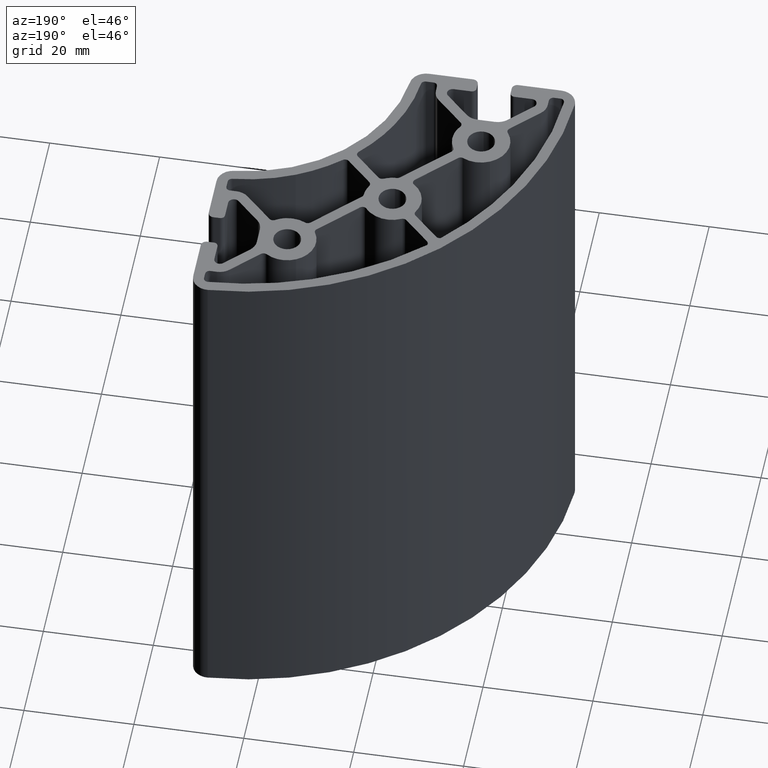
[diagram: clean part render]
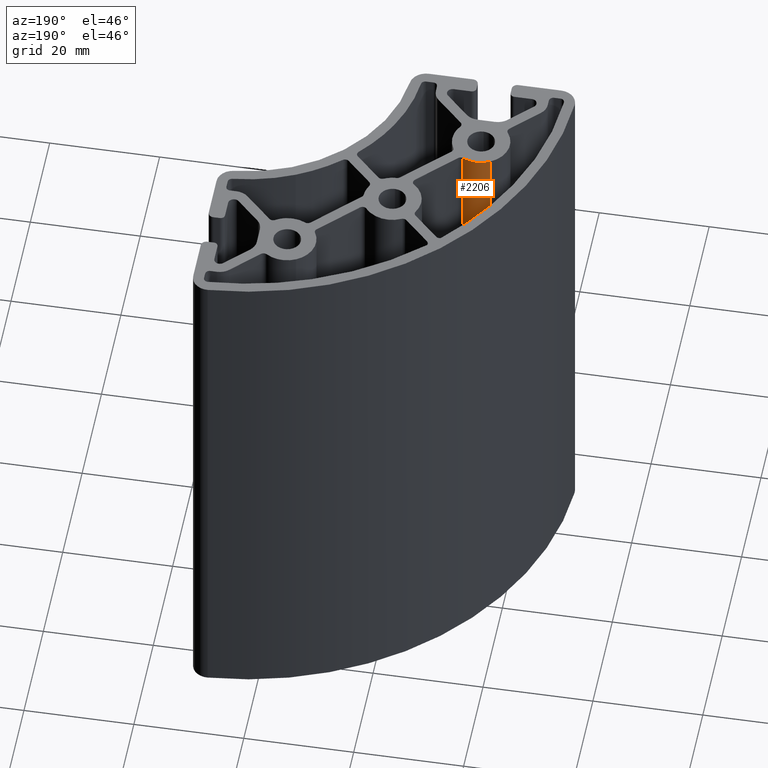
[diagram: same view with one face highlighted and labeled with its STEP entity id]
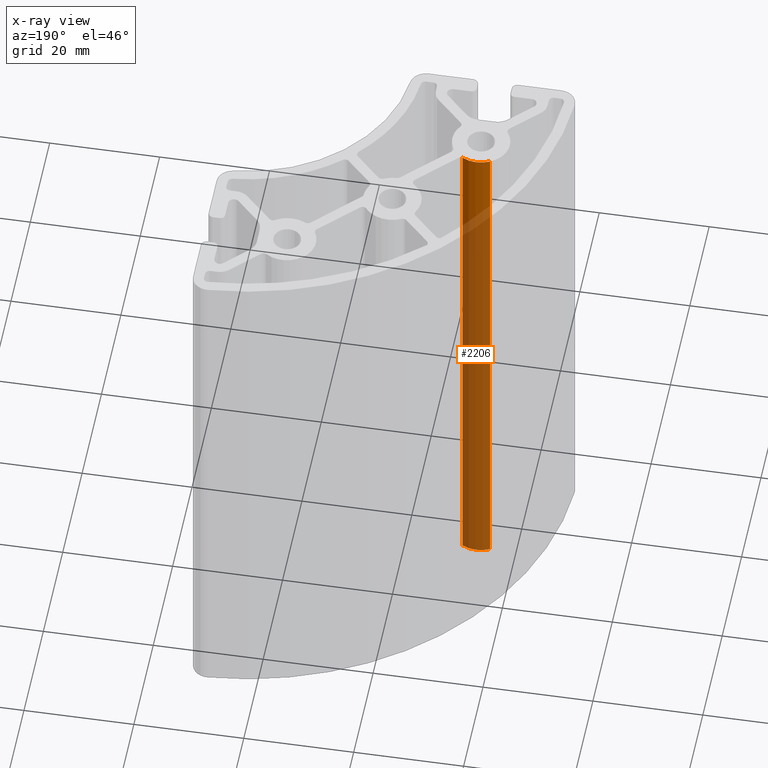
[diagram: x-ray of the same camera — body ghosted, the highlighted face saturated]
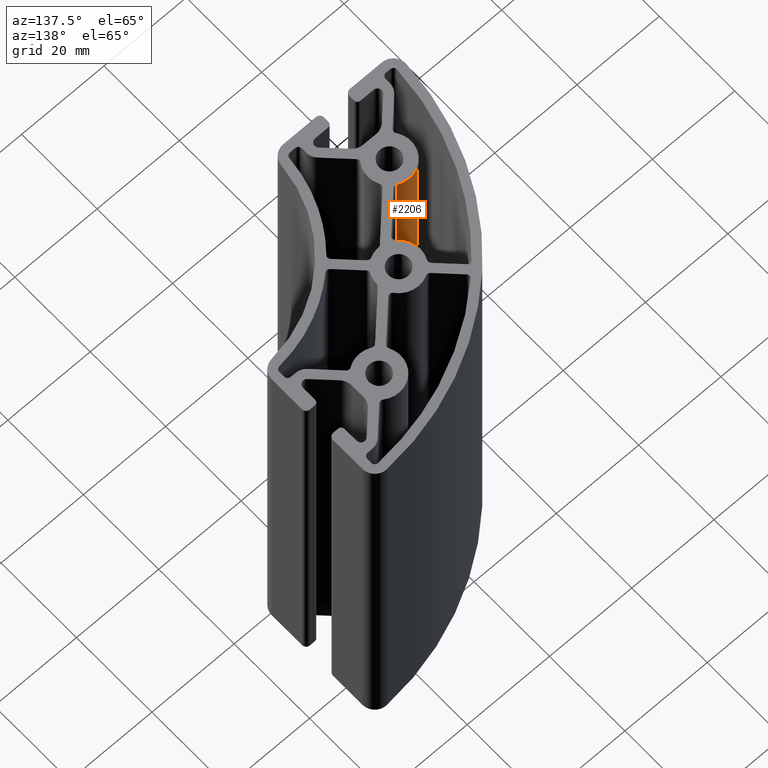
[diagram: same view with one face highlighted and labeled with its STEP entity id]
A machine part, auxiliary view. The second image highlights one B-rep face of the part: STEP entity #2206.
The next image is the same camera in x-ray: the body ghosted, the highlighted face saturated — about 86% of this face is hidden behind the body in this view.
A second angle (auxiliary view) of the same face is appended — the face is thin or edge-on in the first view.
In plain terms, the highlighted cylindrical surface (edge-blend (fillet) strip) has radius 5.2501 mm, axis along (0, 0, 1).
Its self-contained STEP definition (entity closure, byte-faithful):
#34=CIRCLE('',#2329,5.25005250348357);
#35=CIRCLE('',#2330,5.25005250348357);
#189=CYLINDRICAL_SURFACE('',#2328,5.25005250348357);
#268=FACE_OUTER_BOUND('',#386,.T.);
#386=EDGE_LOOP('',(#1482,#1483,#1484,#1485));
#523=LINE('',#3351,#712);
#524=LINE('',#3357,#713);
#712=VECTOR('',#2610,100.);
#713=VECTOR('',#2617,100.);
#901=VERTEX_POINT('',#3348);
#902=VERTEX_POINT('',#3350);
#903=VERTEX_POINT('',#3354);
#904=VERTEX_POINT('',#3356);
#1134=EDGE_CURVE('',#901,#902,#523,.T.);
#1136=EDGE_CURVE('',#903,#901,#34,.T.);
#1137=EDGE_CURVE('',#903,#904,#524,.T.);
#1138=EDGE_CURVE('',#902,#904,#35,.T.);
#1482=ORIENTED_EDGE('',*,*,#1136,.F.);
#1483=ORIENTED_EDGE('',*,*,#1137,.T.);
#1484=ORIENTED_EDGE('',*,*,#1138,.F.);
#1485=ORIENTED_EDGE('',*,*,#1134,.F.);
#2206=ADVANCED_FACE('',(#268),#189,.T.);
#2328=AXIS2_PLACEMENT_3D('',#3353,#2613,#2614);
#2329=AXIS2_PLACEMENT_3D('',#3355,#2615,#2616);
#2330=AXIS2_PLACEMENT_3D('',#3358,#2618,#2619);
#2610=DIRECTION('',(0.,0.,1.));
#2613=DIRECTION('center_axis',(0.,0.,1.));
#2614=DIRECTION('ref_axis',(-0.48910210467937,-0.872226536628077,0.));
#2615=DIRECTION('center_axis',(0.,0.,-1.));
#2616=DIRECTION('ref_axis',(-0.48910210467937,-0.872226536628077,0.));
#2617=DIRECTION('',(0.,0.,1.));
#2618=DIRECTION('center_axis',(0.,0.,1.));
#2619=DIRECTION('ref_axis',(-0.48910210467937,-0.872226536628077,0.));
#3348=CARTESIAN_POINT('',(-10.6137636509325,-12.241988722212,0.));
#3350=CARTESIAN_POINT('',(-10.6137636509325,-12.241988722212,100.));
#3351=CARTESIAN_POINT('',(-10.6137636509325,-12.241988722212,0.));
#3353=CARTESIAN_POINT('Origin',(-13.1815753800635,-16.821223834441,0.));
#3354=CARTESIAN_POINT('',(-15.6192986250334,-12.1714327993226,0.));
#3355=CARTESIAN_POINT('Origin',(-13.1815753800635,-16.821223834441,0.));
#3356=CARTESIAN_POINT('',(-15.6192986250334,-12.1714327993226,100.));
#3357=CARTESIAN_POINT('',(-15.6192986250334,-12.1714327993226,0.));
#3358=CARTESIAN_POINT('Origin',(-13.1815753800635,-16.821223834441,100.));